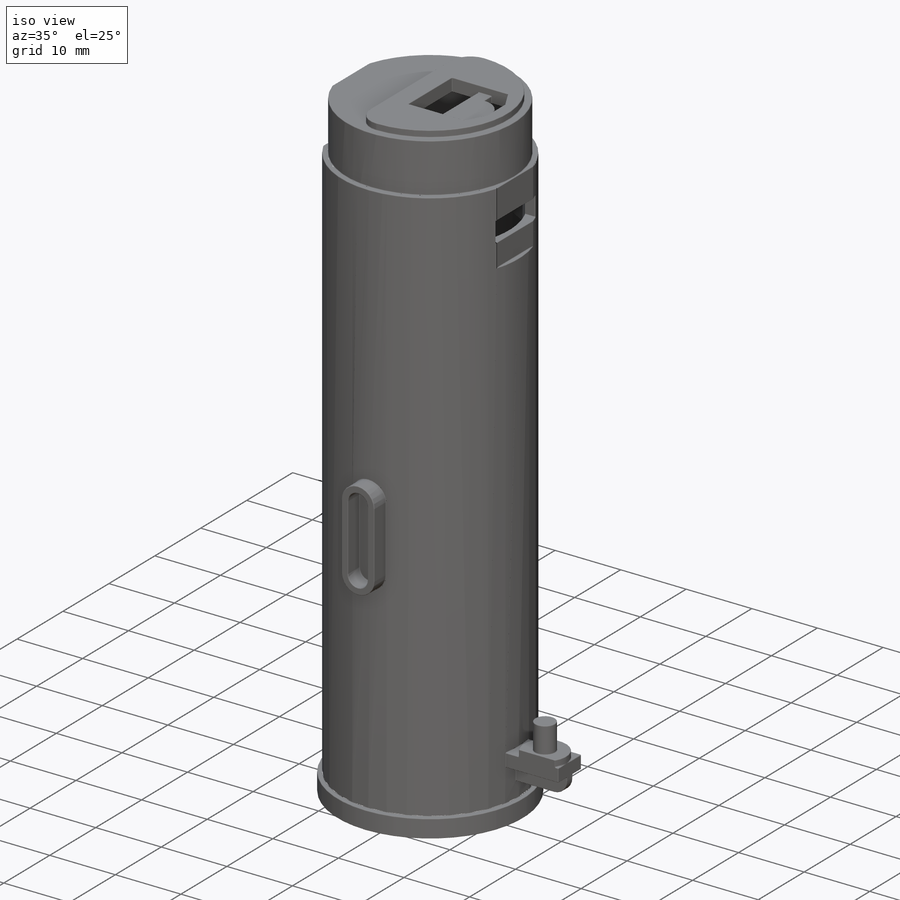
[diagram: iso view]
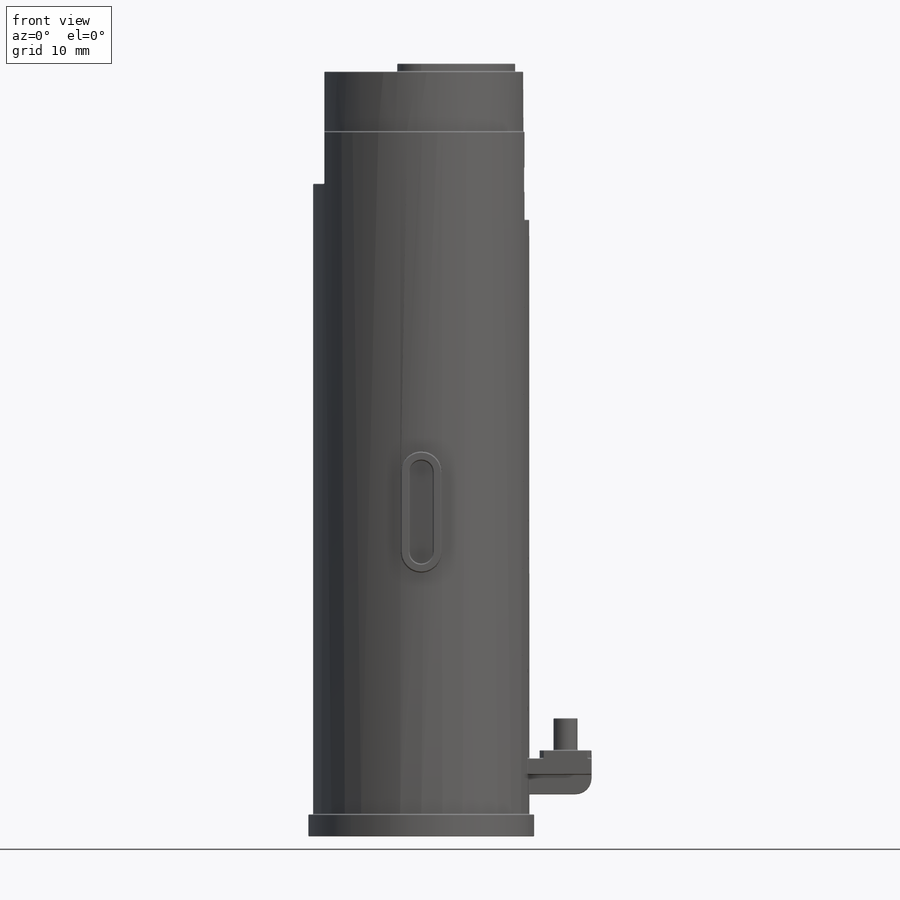
[diagram: front view]
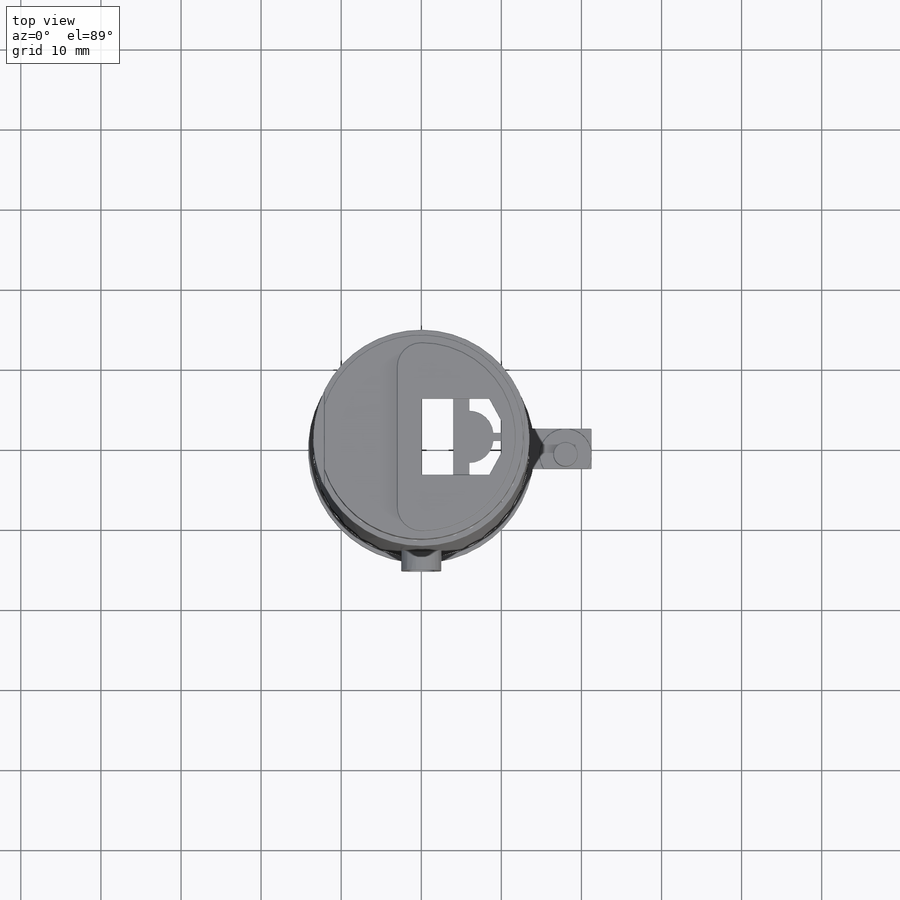
[diagram: top view]
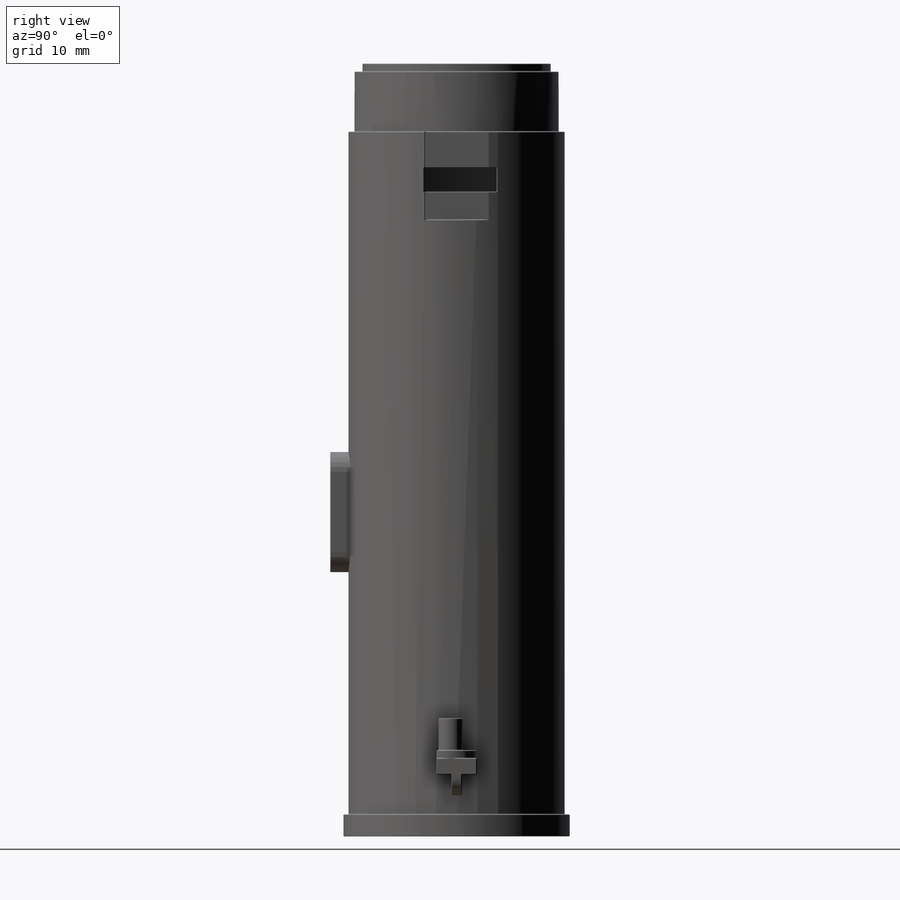
[diagram: right view]
SOLIDWORKS PART (.sldprt)
format: sldprt  version: not decoded by parser v0  size: 1,356,800 bytes
history: native  units: mm
features: sketch x16, extrude x9, fillet x9, cut_extrude x7, material x1 (+11 scaffold rows collapsed)
feature tree (53):
  scaffold x11  (default folders/planes/origin — collapsed)
  material  "Material <not specified>"
  sketch  "Sketch2"  dims[D1=27.0mm]
  extrude  "Boss-Extrude1"  Depth=88mm
  sketch  "Sketch3"  dims[D1=25.5mm]
  extrude  "Boss-Extrude2"  Depth=7.5mm
  sketch  "Sketch4"  dims[D1=12.0mm D2=5.0mm]
  cut_extrude  "Cut-Extrude1"  Depth=14mm
  sketch  "Sketch5"  dims[D1=5.0mm D2=2.5mm D3=2.5mm]
  extrude  "Boss-Extrude3"  Depth=15mm
  fillet  "Fillet1"  [1 undecoded]
  fillet  "Fillet2"  [1 undecoded]
  sketch  "Sketch6"  dims[D1=1.0mm]
  cut_extrude  "Cut-Extrude3"  Depth=2.5mm
  sketch  "Sketch7"  dims[D1=8.0mm]
  cut_extrude  "Cut-Extrude4"  Depth=11mm
  sketch  "Sketch8"  dims[c1.D1=~3.972629mm c1.D2=~9.203913mm c2.D1=5.0mm c2.D2=8.0mm c2.D3=2.5mm]
  extrude  "Boss-Extrude4"  Depth=2mm
  sketch  "Sketch9"  dims[D1=6.5mm D2=0.0mm]
  extrude  "Boss-Extrude5"  Depth=1mm
  sketch  "Sketch10"  dims[D1=3.0mm]
  extrude  "Boss-Extrude6"  Depth=4mm
  sketch  "Sketch11"  dims[c1.D1=~2.202646mm c1.D2=~11.353731mm c2.D1=1.25mm c2.D2=1.875mm]
  extrude  "Boss-Extrude7"  Depth=2.5mm
  sketch  "Sketch12"  dims[D1=28.25mm]
  extrude  "Boss-Extrude8"  Depth=2.75mm
  sketch  "Sketch13"  dims[D1=26.5mm]
  cut_extrude  "Cut-Extrude5"  Depth=76.75mm
  sketch  "Sketch14"  dims[D1=24.0mm]
  cut_extrude  "Cut-Extrude6"  Depth=17.75mm
  sketch  "Sketch15"  dims[c1.D1=9.9998mm c1.D2=~2.734357mm c2.D1=9.5mm c2.D2=4.75mm c2.D3=4.0mm c2.D4=2.0mm c2.D5=2.0mm c2.D6=1.5mm c2.D7=1.0mm c2.D8=1.0mm c2.D9=1.5mm c2.D10=1.5mm c2.D11=1.5mm c2.D12=1.0mm c2.D13=0.0mm c2.D14=0.0mm c2.D15=4.25mm c2.D16=0.0mm c2.D17=10.0mm c2.D18=0.0mm c2.D19=0.0mm c2.D20=0.0mm c2.D21=2.5mm c2.D22=2.5mm]
  cut_extrude  "Cut-Extrude7"  Depth=17.75mm
  sketch  "Sketch16"  dims[D2=3.0mm D3=9.5mm D1=1.0mm]
  extrude  "Boss-Extrude9"  Depth=1mm
  fillet  "Fillet3"  Radius=3mm
  fillet  "Fillet4"  Radius=2mm
  fillet  "Fillet5"  Radius=0.1mm
  fillet  "Fillet6"  Radius=0.1mm
  sketch  "Sketch17"  dims[c1.D1=~3.157396mm c1.D2=~12.084895mm c2.D1=3.0mm c2.D2=4.5mm c2.D3=0.0mm c2.D4=9.0mm]
  cut_extrude  "Cut-Extrude8"  Depth=5mm
  fillet  "Fillet7"  Radius=0.1mm
  fillet  "Fillet8"  Radius=0.1mm
  fillet  "Fillet9"  Radius=0.1mm
decode coverage: 39 of 41 modeling features carry decoded parameters
note: ~ marks probable driven/reference dimensions
note: 2 parameter values undecoded
note: suppression state not decoded; provenance and decode notes live in map.json
